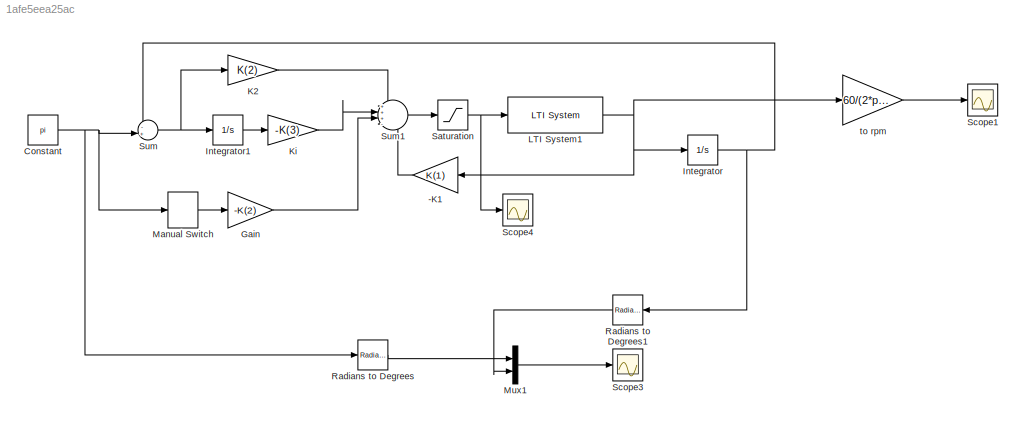
MODEL slx_1afe5eea25ac
KIND model
CONFIG AbsTol = auto
CONFIG EnableMultiTasking = on
CONFIG FixedStep = 0.001
CONFIG MaxStep = auto
CONFIG MinStep = auto
CONFIG RelTol = 1e-3
CONFIG SampleTimeConstraint = Unconstrained
CONFIG SolverName = FixedStepAuto
CONFIG StartTime = 0.0
CONFIG StopTime = 2.5
BLOCK [Gain] -K1
  Gain = K(1)
BLOCK [Constant] Constant
  Value = pi
BLOCK [Gain] Gain
  Gain = -K(2)
BLOCK [Integrator] Integrator
BLOCK [Integrator] Integrator1
BLOCK [Gain] K2
  Gain = K(2)
BLOCK [Gain] Ki
  Gain = -K(3)
BLOCK [Reference] LTI System1  REF=cstblocks/LTI System
  SourceBlock = cstblocks/LTI System
  SourceType = LTI Block
BLOCK [ManualSwitch] Manual Switch
BLOCK [Mux] Mux1
  DisplayOption = bar
  Inputs = 2
BLOCK [Reference] Radians to Degrees  REF=simulink_extras/Transformations/Radians
to Degrees
  SourceBlock = simulink_extras/Transformations/Radians\nto Degrees
  SourceType = RadiansToDegrees
BLOCK [Reference] Radians to Degrees1  REF=simulink_extras/Transformations/Radians
to Degrees
  NameLocation = top
  SourceBlock = simulink_extras/Transformations/Radians\nto Degrees
  SourceType = RadiansToDegrees
BLOCK [Saturate] Saturation
  LowerLimit = -12
  UpperLimit = 12
BLOCK [Scope] Scope1
  Floating = off
  NumInputPorts = 1
  ScopeSpecificationString = Simulink.scopes.TimeScopeBlockCfg('CurrentConfiguration', extmgr.ConfigurationSet(extmgr.Configuration('Core','General UI',true),extmgr.Configuration('Core','Source UI',true),extmgr.Configuration('Sources','WiredSimulink',true,'DataLoggingVariableName','ScopeData2'),extmgr.Configuration('Visuals','Time Domain',true,'TimeAxisLabels','All','SerializedDisplays',{struct('MinYLimReal','-10.15981','MaxY...<+1756ch>
BLOCK [Scope] Scope3
  Floating = off
  NumInputPorts = 1
  ScopeSpecificationString = Simulink.scopes.TimeScopeBlockCfg('CurrentConfiguration', extmgr.ConfigurationSet(extmgr.Configuration('Core','General UI',true),extmgr.Configuration('Core','Source UI',true),extmgr.Configuration('Sources','WiredSimulink',true,'DataLoggingVariableName','ScopeData1'),extmgr.Configuration('Visuals','Time Domain',true,'TimeAxisLabels','All','SerializedDisplays',{struct('MinYLimReal','-37.15841','MaxY...<+2104ch>
BLOCK [Scope] Scope4
  Floating = off
  NumInputPorts = 1
  ScopeSpecificationString = Simulink.scopes.TimeScopeBlockCfg('CurrentConfiguration', extmgr.ConfigurationSet(extmgr.Configuration('Core','General UI',true),extmgr.Configuration('Core','Source UI',true),extmgr.Configuration('Sources','WiredSimulink',true,'DataLoggingVariableName','ScopeData3'),extmgr.Configuration('Visuals','Time Domain',true,'TimeAxisLabels','All','SerializedDisplays',{struct('MinYLimReal','-1.56762','MaxYL...<+1754ch>
BLOCK [Sum] Sum
  Inputs = -+|
BLOCK [Sum] Sum1
  Inputs = +++-
BLOCK [Gain] to rpm
  Gain = 60/(2*pi)
LINE -K1:1 -> Sum1:4
NET Constant:1 -> Manual Switch:1, Radians to Degrees:1, Sum:2
LINE Gain:1 -> Sum1:3
LINE Integrator1:1 -> Ki:1
NET Integrator:1 -> Radians to Degrees1:1, Sum:1
LINE K2:1 -> Sum1:1
LINE Ki:1 -> Sum1:2
NET LTI System1:1 -> -K1:1, Integrator:1, to rpm:1
LINE Manual Switch:1 -> Gain:1
LINE Mux1:1 -> Scope3:1
LINE Radians to Degrees1:1 -> Mux1:2
LINE Radians to Degrees:1 -> Mux1:1
NET Saturation:1 -> LTI System1:1, Scope4:1
LINE Sum1:1 -> Saturation:1
NET Sum:1 -> Integrator1:1, K2:1
LINE to rpm:1 -> Scope1:1
note: NET lines group one-source signal fan-out (src -> all destinations, sorted); 1:1 wires keep LINE
